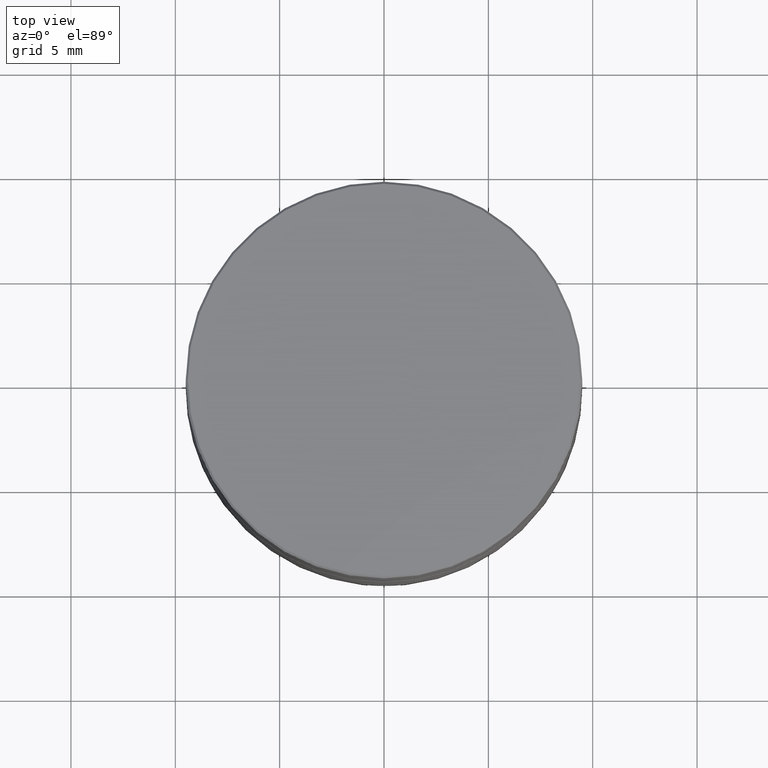
[diagram: clean part render]
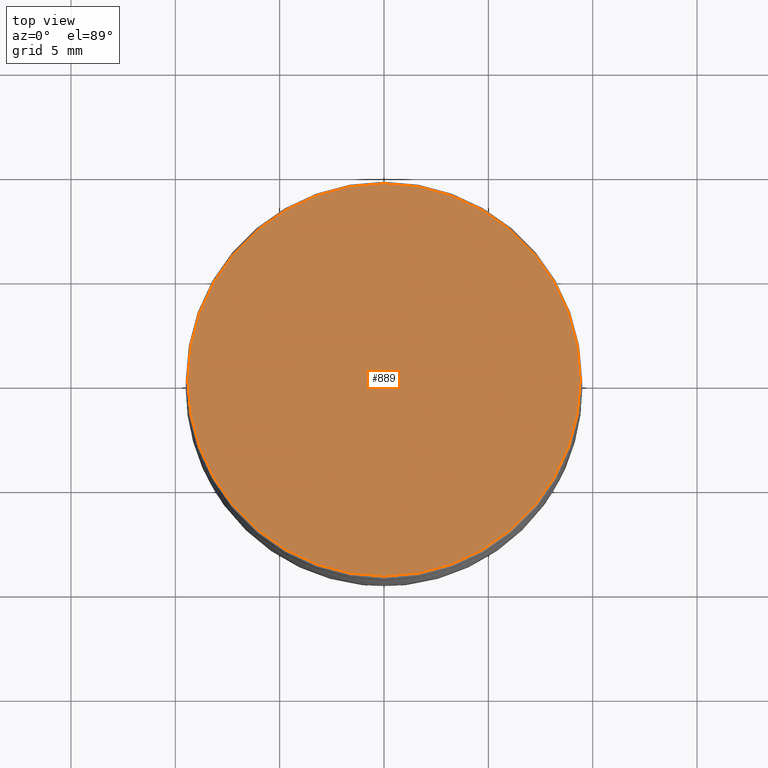
[diagram: same view with one face highlighted and labeled with its STEP entity id]
A machine part, top view. The second image highlights one B-rep face of the part: STEP entity #889.
In plain terms, the highlighted planar face has unit normal (0, -0, 1).
Its self-contained STEP definition (entity closure, byte-faithful):
#8 = CARTESIAN_POINT ( 'NONE',  ( 0.000000000000000000, 0.000000000000000000, 0.000000000000000000 ) ) ;
#66 = CIRCLE ( 'NONE', #969, 9.400000000000002132 ) ;
#180 = EDGE_CURVE ( 'NONE', #796, #234, #583, .T. ) ;
#234 = VERTEX_POINT ( 'NONE', #826 ) ;
#288 = DIRECTION ( 'NONE',  ( -0.000000000000000000, -0.000000000000000000, 1.000000000000000000 ) ) ;
#296 = CARTESIAN_POINT ( 'NONE',  ( 0.000000000000000000, 0.000000000000000000, 0.000000000000000000 ) ) ;
#413 = CARTESIAN_POINT ( 'NONE',  ( -9.400000000000002132, 0.000000000000000000, 0.000000000000000000 ) ) ;
#464 = DIRECTION ( 'NONE',  ( 1.000000000000000000, 0.000000000000000000, 0.000000000000000000 ) ) ;
#490 = EDGE_CURVE ( 'NONE', #234, #796, #66, .T. ) ;
#518 = AXIS2_PLACEMENT_3D ( 'NONE', #296, #1184, #464 ) ;
#583 = CIRCLE ( 'NONE', #518, 9.400000000000002132 ) ;
#714 = ORIENTED_EDGE ( 'NONE', *, *, #490, .T. ) ;
#763 = DIRECTION ( 'NONE',  ( 1.000000000000000000, 0.000000000000000000, 0.000000000000000000 ) ) ;
#782 = PLANE ( 'NONE',  #1449 ) ;
#796 = VERTEX_POINT ( 'NONE', #413 ) ;
#826 = CARTESIAN_POINT ( 'NONE',  ( 9.400000000000002132, 1.157291225194248807E-15, 0.000000000000000000 ) ) ;
#830 = EDGE_LOOP ( 'NONE', ( #1292, #714 ) ) ;
#888 = FACE_OUTER_BOUND ( 'NONE', #830, .T. ) ;
#889 = ADVANCED_FACE ( 'NONE', ( #888 ), #782, .T. ) ;
#900 = DIRECTION ( 'NONE',  ( 1.000000000000000000, 0.000000000000000000, 0.000000000000000000 ) ) ;
#969 = AXIS2_PLACEMENT_3D ( 'NONE', #1281, #288, #763 ) ;
#1184 = DIRECTION ( 'NONE',  ( -0.000000000000000000, -0.000000000000000000, 1.000000000000000000 ) ) ;
#1255 = DIRECTION ( 'NONE',  ( 0.000000000000000000, -0.000000000000000000, 1.000000000000000000 ) ) ;
#1281 = CARTESIAN_POINT ( 'NONE',  ( 0.000000000000000000, 0.000000000000000000, 0.000000000000000000 ) ) ;
#1292 = ORIENTED_EDGE ( 'NONE', *, *, #180, .T. ) ;
#1449 = AXIS2_PLACEMENT_3D ( 'NONE', #8, #1255, #900 ) ;